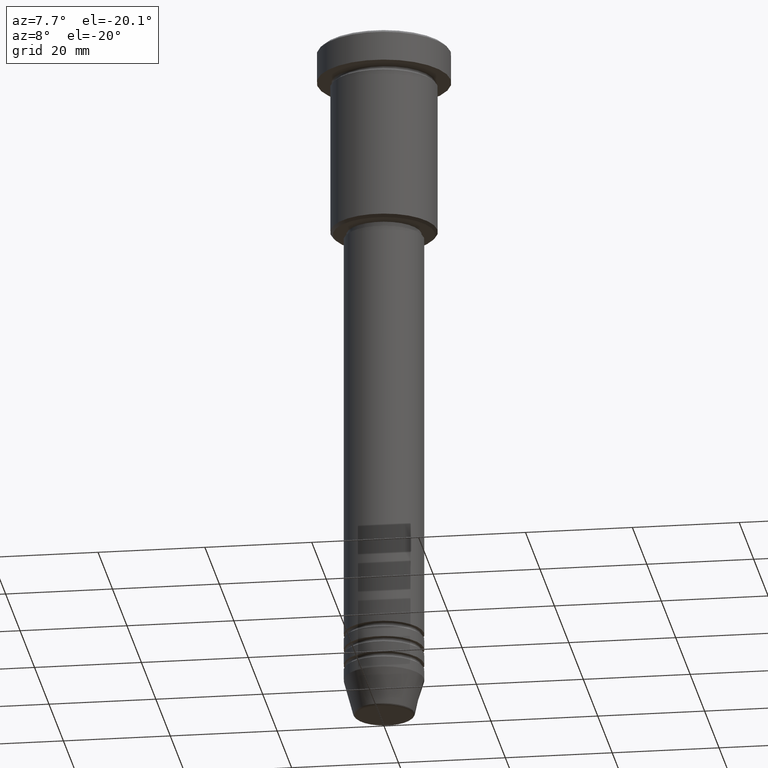
[diagram: clean part render]
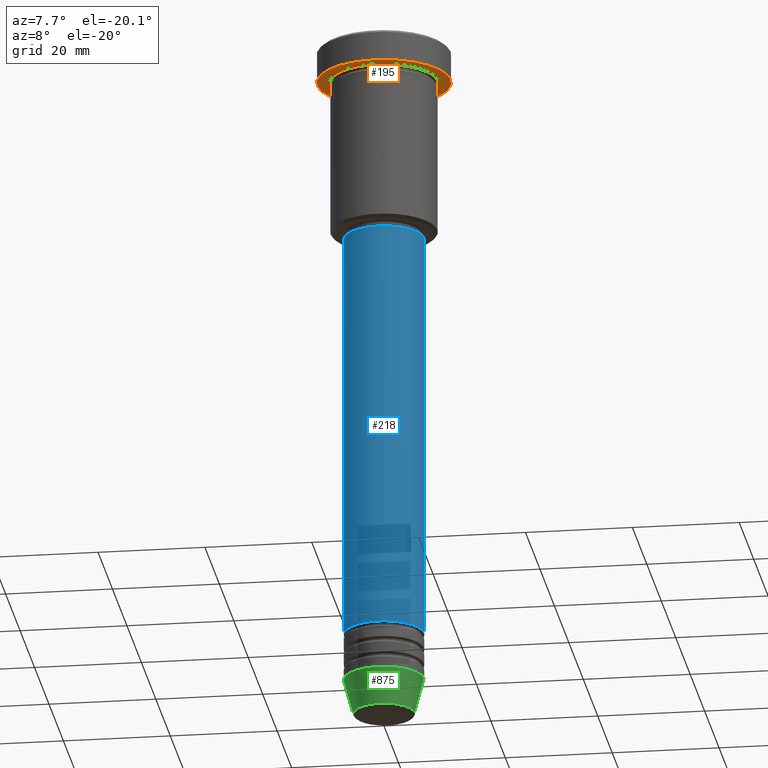
[diagram: same view with three faces highlighted in distinct colors, each labeled with its STEP entity id]
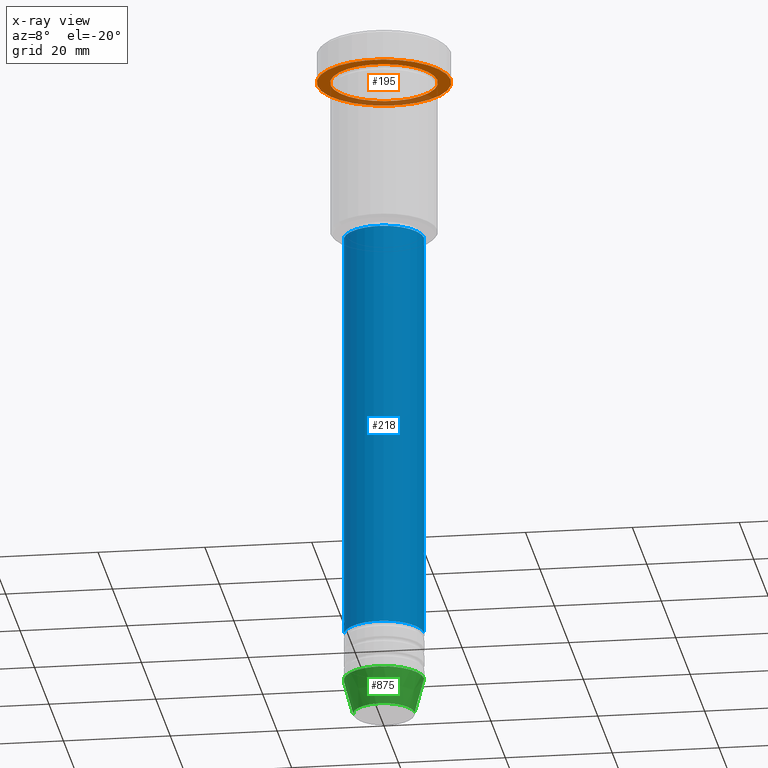
[diagram: x-ray of the same camera — body ghosted, the three highlighted faces saturated]
A machine part, auxiliary view with three faces highlighted in distinct colors.
The next image is the same camera in x-ray (body ghosted, the three faces saturated) — at least one of them is partly hidden behind the body in this view.
Their STEP definitions:

[orange] entity #195 — the highlighted planar face has unit normal (0, 0, -1).
#80 = CARTESIAN_POINT ( 'NONE',  ( 0.000000000000000000, 0.000000000000000000, -5.999999999999996447 ) ) ;
#90 = DIRECTION ( 'NONE',  ( -1.000000000000000000, 0.000000000000000000, 0.000000000000000000 ) ) ;
#100 = CARTESIAN_POINT ( 'NONE',  ( 0.000000000000000000, 0.000000000000000000, -5.999999999999996447 ) ) ;
#119 = ORIENTED_EDGE ( 'NONE', *, *, #550, .F. ) ;
#121 = ORIENTED_EDGE ( 'NONE', *, *, #308, .T. ) ;
#162 = EDGE_LOOP ( 'NONE', ( #1132, #119 ) ) ;
#185 = CIRCLE ( 'NONE', #243, 12.50000000000000000 ) ;
#195 = ADVANCED_FACE ( 'NONE', ( #706, #254 ), #350, .T. ) ;
#222 = AXIS2_PLACEMENT_3D ( 'NONE', #544, #440, #261 ) ;
#243 = AXIS2_PLACEMENT_3D ( 'NONE', #80, #349, #286 ) ;
#254 = FACE_OUTER_BOUND ( 'NONE', #162, .T. ) ;
#261 = DIRECTION ( 'NONE',  ( 1.000000000000000000, 0.000000000000000000, 0.000000000000000000 ) ) ;
#270 = EDGE_CURVE ( 'NONE', #346, #483, #531, .T. ) ;
#281 = CARTESIAN_POINT ( 'NONE',  ( 0.000000000000000000, 0.000000000000000000, -5.999999999999996447 ) ) ;
#286 = DIRECTION ( 'NONE',  ( 1.000000000000000000, 0.000000000000000000, 0.000000000000000000 ) ) ;
#308 = EDGE_CURVE ( 'NONE', #483, #346, #545, .T. ) ;
#346 = VERTEX_POINT ( 'NONE', #908 ) ;
#349 = DIRECTION ( 'NONE',  ( -0.000000000000000000, -0.000000000000000000, 1.000000000000000000 ) ) ;
#350 = PLANE ( 'NONE',  #1021 ) ;
#357 = DIRECTION ( 'NONE',  ( -1.000000000000000000, 0.000000000000000000, 0.000000000000000000 ) ) ;
#391 = CIRCLE ( 'NONE', #222, 12.50000000000000000 ) ;
#440 = DIRECTION ( 'NONE',  ( -0.000000000000000000, -0.000000000000000000, 1.000000000000000000 ) ) ;
#483 = VERTEX_POINT ( 'NONE', #1052 ) ;
#531 = CIRCLE ( 'NONE', #1003, 10.00000000000000000 ) ;
#544 = CARTESIAN_POINT ( 'NONE',  ( 0.000000000000000000, 0.000000000000000000, -5.999999999999996447 ) ) ;
#545 = CIRCLE ( 'NONE', #927, 10.00000000000000000 ) ;
#550 = EDGE_CURVE ( 'NONE', #657, #709, #391, .T. ) ;
#584 = ORIENTED_EDGE ( 'NONE', *, *, #270, .T. ) ;
#621 = DIRECTION ( 'NONE',  ( -1.000000000000000000, 0.000000000000000000, -0.000000000000000000 ) ) ;
#639 = DIRECTION ( 'NONE',  ( -0.000000000000000000, -0.000000000000000000, 1.000000000000000000 ) ) ;
#642 = CARTESIAN_POINT ( 'NONE',  ( 12.50000000000000000, 0.000000000000000000, -5.999999999999996447 ) ) ;
#650 = CARTESIAN_POINT ( 'NONE',  ( -12.50000000000000000, 1.530808498934191521E-15, -5.999999999999996447 ) ) ;
#654 = EDGE_CURVE ( 'NONE', #709, #657, #185, .T. ) ;
#657 = VERTEX_POINT ( 'NONE', #650 ) ;
#699 = DIRECTION ( 'NONE',  ( 0.000000000000000000, 0.000000000000000000, -1.000000000000000000 ) ) ;
#706 = FACE_BOUND ( 'NONE', #1041, .T. ) ;
#709 = VERTEX_POINT ( 'NONE', #642 ) ;
#832 = DIRECTION ( 'NONE',  ( -0.000000000000000000, -0.000000000000000000, 1.000000000000000000 ) ) ;
#908 = CARTESIAN_POINT ( 'NONE',  ( -10.00000000000000000, 0.000000000000000000, -5.999999999999996447 ) ) ;
#927 = AXIS2_PLACEMENT_3D ( 'NONE', #100, #832, #357 ) ;
#1003 = AXIS2_PLACEMENT_3D ( 'NONE', #281, #639, #90 ) ;
#1021 = AXIS2_PLACEMENT_3D ( 'NONE', #1070, #699, #621 ) ;
#1041 = EDGE_LOOP ( 'NONE', ( #584, #121 ) ) ;
#1052 = CARTESIAN_POINT ( 'NONE',  ( 10.00000000000000000, 1.224646799147353256E-15, -5.999999999999996447 ) ) ;
#1070 = CARTESIAN_POINT ( 'NONE',  ( 0.000000000000000000, 12.50000000000000000, -5.999999999999996447 ) ) ;
#1132 = ORIENTED_EDGE ( 'NONE', *, *, #654, .F. ) ;

[blue] entity #218 — the highlighted cylindrical surface (partial cylindrical patch) has radius 7.5 mm, axis along (-0, -0, 1).
#4 = CARTESIAN_POINT ( 'NONE',  ( 7.500000000000000000, 0.000000000000000000, 0.000000000000000000 ) ) ;
#6 = CARTESIAN_POINT ( 'NONE',  ( -7.500000000000000000, 9.184850993605147944E-16, -114.9999999999999574 ) ) ;
#15 = LINE ( 'NONE', #4, #409 ) ;
#32 = ORIENTED_EDGE ( 'NONE', *, *, #1180, .F. ) ;
#78 = AXIS2_PLACEMENT_3D ( 'NONE', #951, #778, #1146 ) ;
#79 = DIRECTION ( 'NONE',  ( 1.000000000000000000, 0.000000000000000000, 0.000000000000000000 ) ) ;
#83 = CARTESIAN_POINT ( 'NONE',  ( 0.000000000000000000, 0.000000000000000000, -114.9999999999999574 ) ) ;
#108 = ORIENTED_EDGE ( 'NONE', *, *, #257, .T. ) ;
#151 = CIRCLE ( 'NONE', #587, 7.500000000000000000 ) ;
#152 = VERTEX_POINT ( 'NONE', #1089 ) ;
#155 = CYLINDRICAL_SURFACE ( 'NONE', #685, 7.500000000000000000 ) ;
#218 = ADVANCED_FACE ( 'NONE', ( #330 ), #155, .T. ) ;
#219 = ORIENTED_EDGE ( 'NONE', *, *, #922, .F. ) ;
#257 = EDGE_CURVE ( 'NONE', #496, #152, #15, .T. ) ;
#330 = FACE_OUTER_BOUND ( 'NONE', #682, .T. ) ;
#361 = DIRECTION ( 'NONE',  ( -0.000000000000000000, -0.000000000000000000, 1.000000000000000000 ) ) ;
#409 = VECTOR ( 'NONE', #361, 1000.000000000000000 ) ;
#421 = CARTESIAN_POINT ( 'NONE',  ( 0.000000000000000000, 0.000000000000000000, 0.000000000000000000 ) ) ;
#422 = CARTESIAN_POINT ( 'NONE',  ( -7.500000000000000000, 9.184850993605147944E-16, -37.00000000000000000 ) ) ;
#450 = CARTESIAN_POINT ( 'NONE',  ( -7.500000000000000000, 9.184850993605147944E-16, 0.000000000000000000 ) ) ;
#451 = CIRCLE ( 'NONE', #78, 7.500000000000000000 ) ;
#470 = LINE ( 'NONE', #450, #931 ) ;
#478 = VERTEX_POINT ( 'NONE', #422 ) ;
#496 = VERTEX_POINT ( 'NONE', #1083 ) ;
#523 = EDGE_CURVE ( 'NONE', #557, #496, #151, .T. ) ;
#557 = VERTEX_POINT ( 'NONE', #6 ) ;
#587 = AXIS2_PLACEMENT_3D ( 'NONE', #83, #635, #902 ) ;
#635 = DIRECTION ( 'NONE',  ( -0.000000000000000000, -0.000000000000000000, 1.000000000000000000 ) ) ;
#682 = EDGE_LOOP ( 'NONE', ( #219, #1011, #108, #32 ) ) ;
#685 = AXIS2_PLACEMENT_3D ( 'NONE', #421, #898, #79 ) ;
#733 = DIRECTION ( 'NONE',  ( -0.000000000000000000, -0.000000000000000000, 1.000000000000000000 ) ) ;
#778 = DIRECTION ( 'NONE',  ( -0.000000000000000000, -0.000000000000000000, 1.000000000000000000 ) ) ;
#898 = DIRECTION ( 'NONE',  ( -0.000000000000000000, -0.000000000000000000, 1.000000000000000000 ) ) ;
#902 = DIRECTION ( 'NONE',  ( 1.000000000000000000, 0.000000000000000000, 0.000000000000000000 ) ) ;
#922 = EDGE_CURVE ( 'NONE', #557, #478, #470, .T. ) ;
#931 = VECTOR ( 'NONE', #733, 1000.000000000000000 ) ;
#951 = CARTESIAN_POINT ( 'NONE',  ( 0.000000000000000000, 0.000000000000000000, -37.00000000000000000 ) ) ;
#1011 = ORIENTED_EDGE ( 'NONE', *, *, #523, .T. ) ;
#1083 = CARTESIAN_POINT ( 'NONE',  ( 7.500000000000000000, 0.000000000000000000, -114.9999999999999574 ) ) ;
#1089 = CARTESIAN_POINT ( 'NONE',  ( 7.500000000000000000, 0.000000000000000000, -37.00000000000000000 ) ) ;
#1146 = DIRECTION ( 'NONE',  ( 1.000000000000000000, 0.000000000000000000, 0.000000000000000000 ) ) ;
#1180 = EDGE_CURVE ( 'NONE', #478, #152, #451, .T. ) ;

[green] entity #875 — the highlighted conical surface has half-angle 15 deg.
#27 = ORIENTED_EDGE ( 'NONE', *, *, #48, .T. ) ;
#48 = EDGE_CURVE ( 'NONE', #1112, #1025, #692, .T. ) ;
#92 = EDGE_LOOP ( 'NONE', ( #497, #521, #27, #113 ) ) ;
#113 = ORIENTED_EDGE ( 'NONE', *, *, #1160, .F. ) ;
#154 = AXIS2_PLACEMENT_3D ( 'NONE', #484, #683, #858 ) ;
#178 = VERTEX_POINT ( 'NONE', #248 ) ;
#179 = DIRECTION ( 'NONE',  ( -0.2588190451025213501, 3.169619151431772337E-17, 0.9659258262890680902 ) ) ;
#248 = CARTESIAN_POINT ( 'NONE',  ( -7.500000000000000000, 9.184850993605147944E-16, -124.0000000000000000 ) ) ;
#252 = DIRECTION ( 'NONE',  ( 0.2588190451025213501, 0.000000000000000000, 0.9659258262890680902 ) ) ;
#283 = DIRECTION ( 'NONE',  ( 1.000000000000000000, 0.000000000000000000, 0.000000000000000000 ) ) ;
#287 = CARTESIAN_POINT ( 'NONE',  ( 0.000000000000000000, 0.000000000000000000, -130.6294095225512422 ) ) ;
#385 = CARTESIAN_POINT ( 'NONE',  ( 0.000000000000000000, 0.000000000000000000, -124.0000000000000000 ) ) ;
#393 = AXIS2_PLACEMENT_3D ( 'NONE', #287, #553, #283 ) ;
#394 = CIRCLE ( 'NONE', #154, 7.500000000000000000 ) ;
#414 = CARTESIAN_POINT ( 'NONE',  ( 5.723655072137191269, 0.000000000000000000, -130.6294095225512422 ) ) ;
#446 = CARTESIAN_POINT ( 'NONE',  ( -7.500000000000000000, 9.184850993605147944E-16, -124.0000000000000000 ) ) ;
#469 = DIRECTION ( 'NONE',  ( -0.000000000000000000, -0.000000000000000000, 1.000000000000000000 ) ) ;
#482 = VECTOR ( 'NONE', #252, 1000.000000000000000 ) ;
#484 = CARTESIAN_POINT ( 'NONE',  ( 0.000000000000000000, 0.000000000000000000, -124.0000000000000000 ) ) ;
#497 = ORIENTED_EDGE ( 'NONE', *, *, #571, .F. ) ;
#521 = ORIENTED_EDGE ( 'NONE', *, *, #824, .T. ) ;
#553 = DIRECTION ( 'NONE',  ( -0.000000000000000000, -0.000000000000000000, 1.000000000000000000 ) ) ;
#554 = CARTESIAN_POINT ( 'NONE',  ( 7.500000000000000000, 0.000000000000000000, -124.0000000000000000 ) ) ;
#571 = EDGE_CURVE ( 'NONE', #797, #178, #1071, .T. ) ;
#683 = DIRECTION ( 'NONE',  ( -0.000000000000000000, -0.000000000000000000, 1.000000000000000000 ) ) ;
#692 = LINE ( 'NONE', #711, #482 ) ;
#711 = CARTESIAN_POINT ( 'NONE',  ( 7.500000000000000000, 0.000000000000000000, -124.0000000000000000 ) ) ;
#723 = VECTOR ( 'NONE', #179, 1000.000000000000000 ) ;
#797 = VERTEX_POINT ( 'NONE', #838 ) ;
#824 = EDGE_CURVE ( 'NONE', #797, #1112, #897, .T. ) ;
#838 = CARTESIAN_POINT ( 'NONE',  ( -5.723655072137191269, 8.097153428560735915E-16, -130.6294095225512422 ) ) ;
#843 = DIRECTION ( 'NONE',  ( 1.000000000000000000, 0.000000000000000000, 0.000000000000000000 ) ) ;
#858 = DIRECTION ( 'NONE',  ( 1.000000000000000000, 0.000000000000000000, 0.000000000000000000 ) ) ;
#861 = CONICAL_SURFACE ( 'NONE', #913, 7.500000000000000000, 0.2617993877991500740 ) ;
#875 = ADVANCED_FACE ( 'NONE', ( #1115 ), #861, .T. ) ;
#897 = CIRCLE ( 'NONE', #393, 5.723655072137191269 ) ;
#913 = AXIS2_PLACEMENT_3D ( 'NONE', #385, #469, #843 ) ;
#1025 = VERTEX_POINT ( 'NONE', #554 ) ;
#1071 = LINE ( 'NONE', #446, #723 ) ;
#1112 = VERTEX_POINT ( 'NONE', #414 ) ;
#1115 = FACE_OUTER_BOUND ( 'NONE', #92, .T. ) ;
#1160 = EDGE_CURVE ( 'NONE', #178, #1025, #394, .T. ) ;